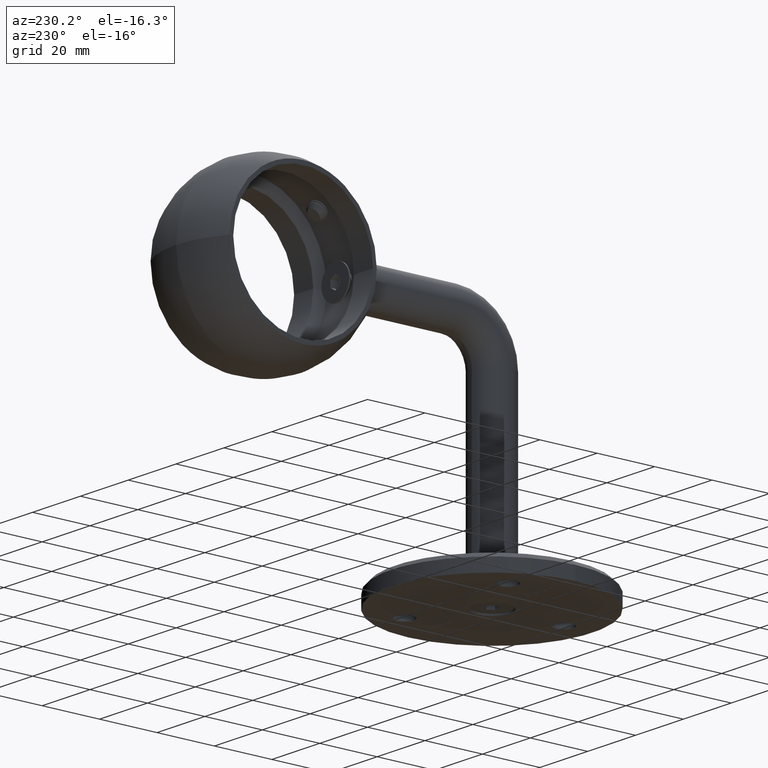
[diagram: clean part render]
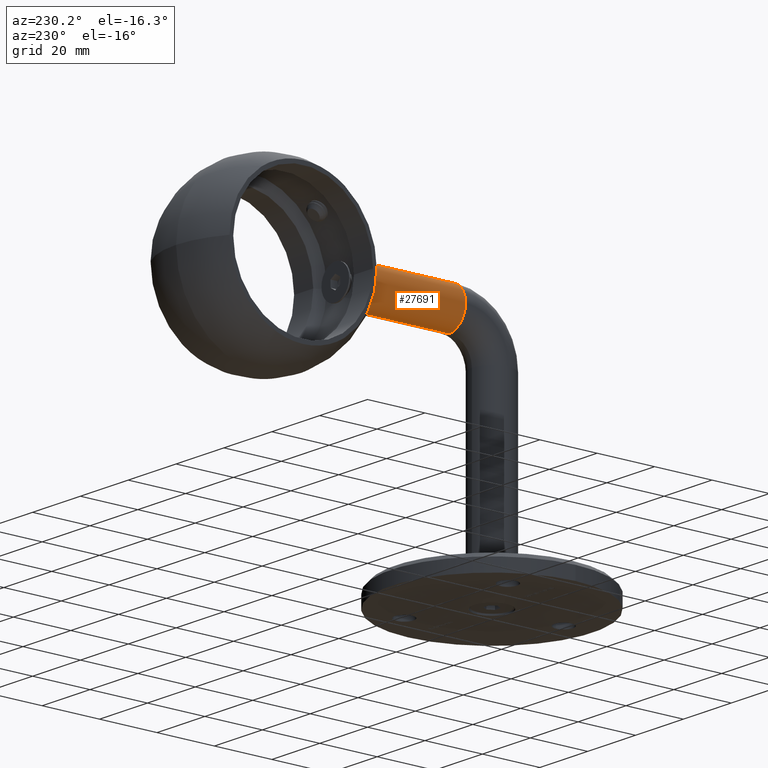
[diagram: same view with one face highlighted and labeled with its STEP entity id]
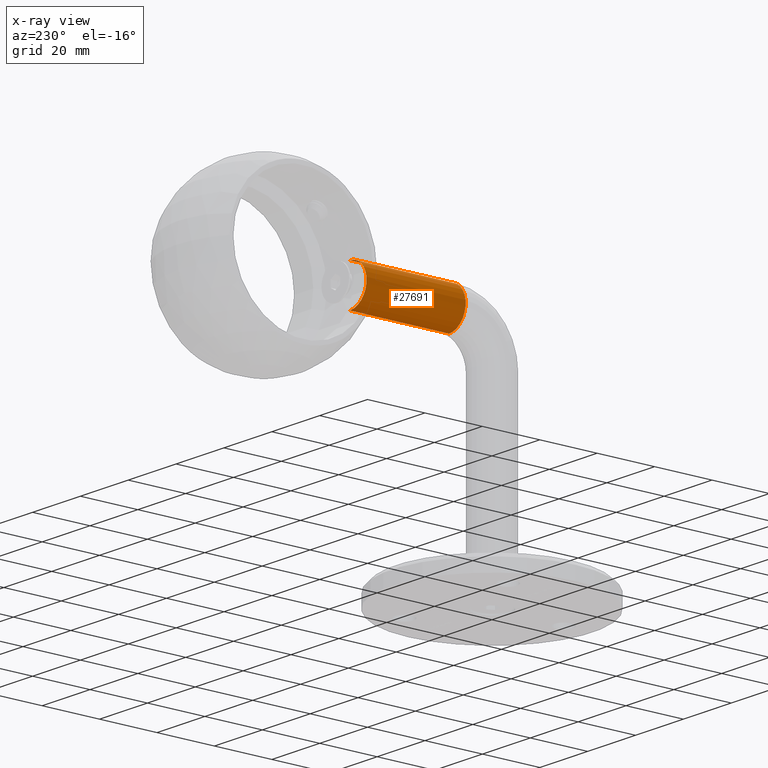
[diagram: x-ray of the same camera — body ghosted, the highlighted face saturated]
A machine part, auxiliary view. The second image highlights one B-rep face of the part: STEP entity #27691.
The next image is the same camera in x-ray: the body ghosted, the highlighted face saturated — about 0% of this face is hidden behind the body in this view.
In plain terms, the highlighted cylindrical surface (edge-blend (fillet) strip) has radius 7 mm, axis along (0, 1, 0).
Its self-contained STEP definition (entity closure, byte-faithful):
#963 = CARTESIAN_POINT ( 'NONE',  ( 0.000000000000000000, 14.99999999999999289, 81.99999999999998579 ) ) ;
#1312 = EDGE_CURVE ( 'NONE', #12886, #8877, #24933, .T. ) ;
#2369 = FACE_OUTER_BOUND ( 'NONE', #8717, .T. ) ;
#3737 = LINE ( 'NONE', #9399, #8357 ) ;
#4329 = CARTESIAN_POINT ( 'NONE',  ( 0.000000000000000000, 49.49999999999997868, 74.99999999999998579 ) ) ;
#4773 = EDGE_CURVE ( 'NONE', #19634, #21483, #3737, .T. ) ;
#4887 = CARTESIAN_POINT ( 'NONE',  ( 8.572527594031465301E-16, 14.99999999999999289, 67.99999999999997158 ) ) ;
#6809 = DIRECTION ( 'NONE',  ( 0.000000000000000000, 1.000000000000000000, 6.123233995736766036E-17 ) ) ;
#6983 = CARTESIAN_POINT ( 'NONE',  ( 8.572527594031465301E-16, 49.49999999999997868, 67.99999999999997158 ) ) ;
#8357 = VECTOR ( 'NONE', #23292, 1000.000000000000000 ) ;
#8470 = DIRECTION ( 'NONE',  ( 0.000000000000000000, 1.000000000000000000, 0.000000000000000000 ) ) ;
#8701 = CIRCLE ( 'NONE', #28337, 7.000000000000000000 ) ;
#8717 = EDGE_LOOP ( 'NONE', ( #25147, #31573, #12833, #14823 ) ) ;
#8877 = VERTEX_POINT ( 'NONE', #13030 ) ;
#9399 = CARTESIAN_POINT ( 'NONE',  ( 8.572527594031473190E-16, 14.99999999999999289, 67.99999999999997158 ) ) ;
#11381 = EDGE_CURVE ( 'NONE', #21483, #8877, #17218, .T. ) ;
#12203 = DIRECTION ( 'NONE',  ( 1.000000000000000000, 0.000000000000000000, 0.000000000000000000 ) ) ;
#12833 = ORIENTED_EDGE ( 'NONE', *, *, #1312, .T. ) ;
#12886 = VERTEX_POINT ( 'NONE', #13486 ) ;
#13030 = CARTESIAN_POINT ( 'NONE',  ( 0.000000000000000000, 49.49999999999997868, 81.99999999999998579 ) ) ;
#13486 = CARTESIAN_POINT ( 'NONE',  ( 0.000000000000000000, 14.99999999999999289, 81.99999999999998579 ) ) ;
#13727 = DIRECTION ( 'NONE',  ( 1.000000000000000000, 0.000000000000000000, 0.000000000000000000 ) ) ;
#14823 = ORIENTED_EDGE ( 'NONE', *, *, #11381, .F. ) ;
#17218 = CIRCLE ( 'NONE', #26713, 7.000000000000000000 ) ;
#18537 = DIRECTION ( 'NONE',  ( 0.000000000000000000, 1.000000000000000000, 6.123233995736766036E-17 ) ) ;
#18615 = VECTOR ( 'NONE', #22496, 1000.000000000000000 ) ;
#19634 = VERTEX_POINT ( 'NONE', #4887 ) ;
#21483 = VERTEX_POINT ( 'NONE', #6983 ) ;
#22496 = DIRECTION ( 'NONE',  ( 0.000000000000000000, 1.000000000000000000, 0.000000000000000000 ) ) ;
#23043 = CARTESIAN_POINT ( 'NONE',  ( 0.000000000000000000, 14.99999999999999289, 74.99999999999998579 ) ) ;
#23292 = DIRECTION ( 'NONE',  ( 0.000000000000000000, 1.000000000000000000, 0.000000000000000000 ) ) ;
#23408 = CYLINDRICAL_SURFACE ( 'NONE', #23837, 7.000000000000006217 ) ;
#23837 = AXIS2_PLACEMENT_3D ( 'NONE', #24941, #8470, #29931 ) ;
#24933 = LINE ( 'NONE', #963, #18615 ) ;
#24941 = CARTESIAN_POINT ( 'NONE',  ( 0.000000000000000000, 14.99999999999999289, 74.99999999999998579 ) ) ;
#25147 = ORIENTED_EDGE ( 'NONE', *, *, #4773, .F. ) ;
#26713 = AXIS2_PLACEMENT_3D ( 'NONE', #4329, #18537, #13727 ) ;
#26803 = EDGE_CURVE ( 'NONE', #19634, #12886, #8701, .T. ) ;
#27691 = ADVANCED_FACE ( 'NONE', ( #2369 ), #23408, .T. ) ;
#28337 = AXIS2_PLACEMENT_3D ( 'NONE', #23043, #6809, #12203 ) ;
#29931 = DIRECTION ( 'NONE',  ( 0.000000000000000000, 0.000000000000000000, 1.000000000000000000 ) ) ;
#31573 = ORIENTED_EDGE ( 'NONE', *, *, #26803, .T. ) ;